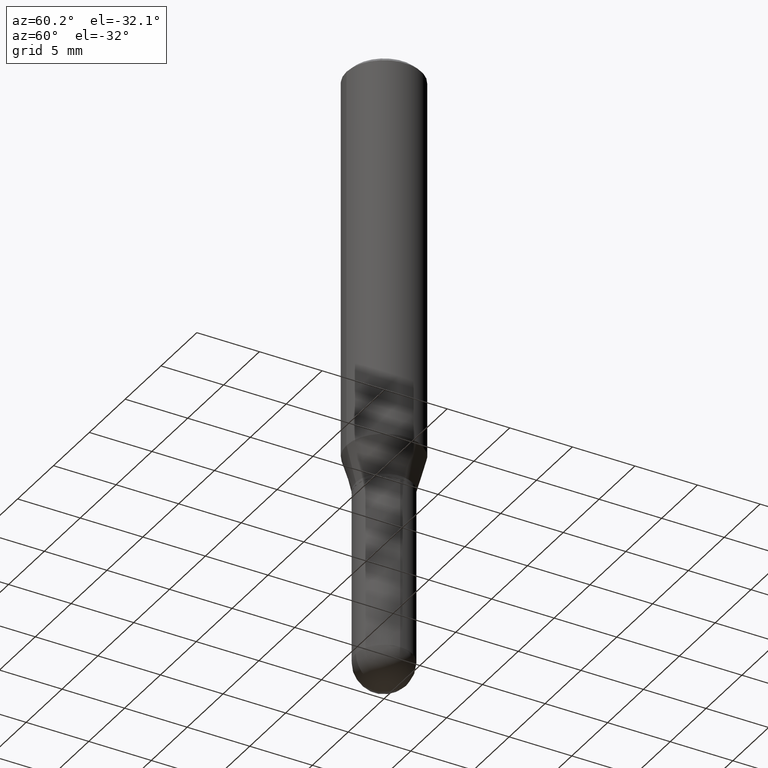
[diagram: clean part render]
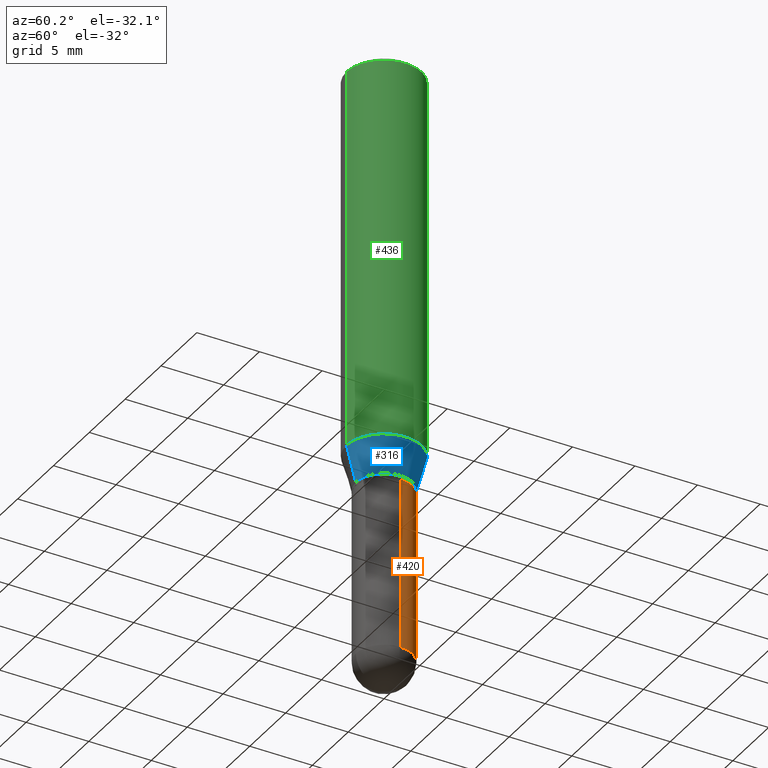
[diagram: same view with three faces highlighted in distinct colors, each labeled with its STEP entity id]
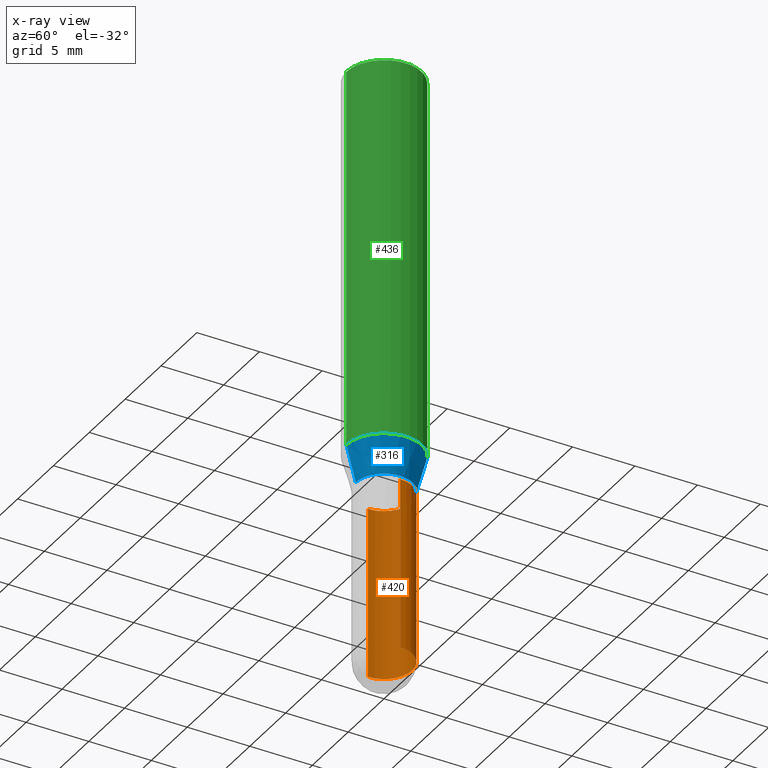
[diagram: x-ray of the same camera — body ghosted, the three highlighted faces saturated]
A machine part, auxiliary view with three faces highlighted in distinct colors.
The next image is the same camera in x-ray (body ghosted, the three faces saturated) — at least one of them is partly hidden behind the body in this view.
Their STEP definitions:

[orange] entity #420 — the highlighted cylindrical surface (edge-blend (fillet) strip) has radius 2.2504 mm, axis along (-0, 0, 1).
#15 = DIRECTION ( 'NONE',  ( 1.000000000000000000, -6.982962677686270655E-15, 0.000000000000000000 ) ) ;
#32 = EDGE_CURVE ( 'NONE', #175, #335, #356, .T. ) ;
#36 = CARTESIAN_POINT ( 'NONE',  ( 6.186904932430488054E-16, 0.08859999999999342013, -1.879900000000000126 ) ) ;
#81 = CARTESIAN_POINT ( 'NONE',  ( 0.08859999999999998432, -6.186904932430030515E-16, 4.320292623355198064E-30 ) ) ;
#82 = CIRCLE ( 'NONE', #200, 0.08859999999999999820 ) ;
#91 = CARTESIAN_POINT ( 'NONE',  ( 4.597236808747438107E-29, -6.563635768891228653E-15, -1.879899999999999904 ) ) ;
#92 = ORIENTED_EDGE ( 'NONE', *, *, #390, .T. ) ;
#97 = CARTESIAN_POINT ( 'NONE',  ( 0.08859999999999999820, -5.292387413418437689E-15, -1.338600000000000012 ) ) ;
#131 = VECTOR ( 'NONE', #389, 39.37007874015748143 ) ;
#135 = VERTEX_POINT ( 'NONE', #36 ) ;
#142 = CARTESIAN_POINT ( 'NONE',  ( 3.273504543959423913E-29, -4.673696920175434737E-15, -1.338600000000000012 ) ) ;
#146 = DIRECTION ( 'NONE',  ( 1.000000000000000000, -6.982962677686265922E-15, 4.876176775795935232E-29 ) ) ;
#173 = VERTEX_POINT ( 'NONE', #401 ) ;
#175 = VERTEX_POINT ( 'NONE', #405 ) ;
#190 = LINE ( 'NONE', #230, #131 ) ;
#200 = AXIS2_PLACEMENT_3D ( 'NONE', #142, #261, #422 ) ;
#213 = DIRECTION ( 'NONE',  ( 1.000000000000000000, -6.982962677686270655E-15, 0.000000000000000000 ) ) ;
#223 = CYLINDRICAL_SURFACE ( 'NONE', #435, 0.08859999999999998432 ) ;
#227 = DIRECTION ( 'NONE',  ( -2.445468806185136597E-29, 3.491481338843145583E-15, 1.000000000000000000 ) ) ;
#230 = CARTESIAN_POINT ( 'NONE',  ( -0.08859999999999998432, 6.295408638834486533E-16, -4.358176489965845566E-30 ) ) ;
#246 = AXIS2_PLACEMENT_3D ( 'NONE', #251, #499, #213 ) ;
#248 = EDGE_CURVE ( 'NONE', #175, #135, #287, .T. ) ;
#251 = CARTESIAN_POINT ( 'NONE',  ( 4.597236808747438107E-29, -6.563635768891228653E-15, -1.879899999999999904 ) ) ;
#254 = EDGE_LOOP ( 'NONE', ( #332, #92, #285, #495, #307 ) ) ;
#261 = DIRECTION ( 'NONE',  ( -2.445468806185136597E-29, 3.491481338843145583E-15, 1.000000000000000000 ) ) ;
#280 = VECTOR ( 'NONE', #311, 39.37007874015748143 ) ;
#285 = ORIENTED_EDGE ( 'NONE', *, *, #447, .F. ) ;
#287 = CIRCLE ( 'NONE', #416, 0.08859999999999998432 ) ;
#295 = CARTESIAN_POINT ( 'NONE',  ( -0.08859999999999998432, -4.989125480649882450E-15, -1.879899999999999904 ) ) ;
#303 = VERTEX_POINT ( 'NONE', #295 ) ;
#307 = ORIENTED_EDGE ( 'NONE', *, *, #248, .T. ) ;
#311 = DIRECTION ( 'NONE',  ( -2.445468806185136877E-29, 3.491481338843145188E-15, 1.000000000000000000 ) ) ;
#332 = ORIENTED_EDGE ( 'NONE', *, *, #488, .T. ) ;
#335 = VERTEX_POINT ( 'NONE', #97 ) ;
#348 = FACE_OUTER_BOUND ( 'NONE', #254, .T. ) ;
#356 = LINE ( 'NONE', #81, #280 ) ;
#370 = CIRCLE ( 'NONE', #246, 0.08859999999999998432 ) ;
#389 = DIRECTION ( 'NONE',  ( -2.445468806185136877E-29, 3.491481338843145188E-15, 1.000000000000000000 ) ) ;
#390 = EDGE_CURVE ( 'NONE', #303, #173, #190, .T. ) ;
#401 = CARTESIAN_POINT ( 'NONE',  ( -0.08859999999999999820, -4.989125480649882450E-15, -1.338600000000000012 ) ) ;
#405 = CARTESIAN_POINT ( 'NONE',  ( 0.08859999999999998432, -6.237356837776335042E-15, -1.879899999999999904 ) ) ;
#416 = AXIS2_PLACEMENT_3D ( 'NONE', #91, #449, #15 ) ;
#420 = ADVANCED_FACE ( 'NONE', ( #348 ), #223, .T. ) ;
#422 = DIRECTION ( 'NONE',  ( 1.000000000000000000, -6.982962677686269077E-15, 0.000000000000000000 ) ) ;
#435 = AXIS2_PLACEMENT_3D ( 'NONE', #509, #227, #146 ) ;
#447 = EDGE_CURVE ( 'NONE', #335, #173, #82, .T. ) ;
#449 = DIRECTION ( 'NONE',  ( -2.445468806185136597E-29, 3.491481338843145583E-15, 1.000000000000000000 ) ) ;
#488 = EDGE_CURVE ( 'NONE', #135, #303, #370, .T. ) ;
#495 = ORIENTED_EDGE ( 'NONE', *, *, #32, .F. ) ;
#499 = DIRECTION ( 'NONE',  ( -2.445468806185136597E-29, 3.491481338843145583E-15, 1.000000000000000000 ) ) ;
#509 = CARTESIAN_POINT ( 'NONE',  ( 0.000000000000000000, 0.000000000000000000, 0.000000000000000000 ) ) ;

[blue] entity #316 — the highlighted conical surface has half-angle 15 deg.
#3 = CIRCLE ( 'NONE', #434, 0.08859999999999991493 ) ;
#12 = CARTESIAN_POINT ( 'NONE',  ( 2.979624522571035712E-29, -4.254658140543858788E-15, -1.218504501176718158 ) ) ;
#13 = DIRECTION ( 'NONE',  ( -2.445312692479667883E-29, 3.491704902554816982E-15, 1.000000000000000000 ) ) ;
#17 = VECTOR ( 'NONE', #215, 39.37007874015747433 ) ;
#44 = DIRECTION ( 'NONE',  ( -6.982962677686264344E-15, -1.000000000000000000, 3.083349879982241481E-15 ) ) ;
#66 = VERTEX_POINT ( 'NONE', #432 ) ;
#94 = ORIENTED_EDGE ( 'NONE', *, *, #114, .T. ) ;
#95 = CARTESIAN_POINT ( 'NONE',  ( -8.246878922347182859E-16, -0.1181000000000042710, -1.218504501176717714 ) ) ;
#98 = VERTEX_POINT ( 'NONE', #234 ) ;
#114 = EDGE_CURVE ( 'NONE', #98, #66, #3, .T. ) ;
#137 = EDGE_CURVE ( 'NONE', #66, #452, #193, .T. ) ;
#167 = ORIENTED_EDGE ( 'NONE', *, *, #137, .T. ) ;
#171 = CARTESIAN_POINT ( 'NONE',  ( -6.186904932429700179E-16, -0.08860000000000455012, -1.328599999999999781 ) ) ;
#172 = CARTESIAN_POINT ( 'NONE',  ( 3.248842443228486773E-29, -4.639079133534330158E-15, -1.328600000000000225 ) ) ;
#176 = EDGE_CURVE ( 'NONE', #98, #487, #408, .T. ) ;
#193 = LINE ( 'NONE', #362, #17 ) ;
#206 = DIRECTION ( 'NONE',  ( -2.445312692479667883E-29, 3.491704902554816982E-15, 1.000000000000000000 ) ) ;
#215 = DIRECTION ( 'NONE',  ( 1.839019923739599526E-15, 0.2588190451025248473, 0.9659258262890673130 ) ) ;
#221 = EDGE_CURVE ( 'NONE', #487, #452, #482, .T. ) ;
#229 = EDGE_LOOP ( 'NONE', ( #94, #167, #293, #371 ) ) ;
#234 = CARTESIAN_POINT ( 'NONE',  ( -6.186904932429700179E-16, -0.08860000000000455012, -1.328599999999999781 ) ) ;
#240 = CARTESIAN_POINT ( 'NONE',  ( 3.248842443228486773E-29, -4.639079133534330158E-15, -1.328600000000000225 ) ) ;
#257 = AXIS2_PLACEMENT_3D ( 'NONE', #12, #206, #288 ) ;
#263 = CARTESIAN_POINT ( 'NONE',  ( 8.391509709327078780E-16, 0.1180999999999957362, -1.218504501176718602 ) ) ;
#283 = FACE_OUTER_BOUND ( 'NONE', #229, .T. ) ;
#288 = DIRECTION ( 'NONE',  ( -6.982962677686265922E-15, -1.000000000000000000, 3.469747663417777397E-15 ) ) ;
#293 = ORIENTED_EDGE ( 'NONE', *, *, #221, .F. ) ;
#298 = VECTOR ( 'NONE', #334, 39.37007874015749564 ) ;
#316 = ADVANCED_FACE ( 'NONE', ( #283 ), #340, .T. ) ;
#334 = DIRECTION ( 'NONE',  ( -1.807323732225328562E-15, -0.2588190451025179639, 0.9659258262890689783 ) ) ;
#340 = CONICAL_SURFACE ( 'NONE', #359, 0.08859999999999991493, 0.2617993877991501295 ) ;
#358 = DIRECTION ( 'NONE',  ( -6.982962677686264344E-15, -1.000000000000000000, 3.083349879982241481E-15 ) ) ;
#359 = AXIS2_PLACEMENT_3D ( 'NONE', #172, #13, #358 ) ;
#362 = CARTESIAN_POINT ( 'NONE',  ( 6.295408638834805036E-16, 0.08859999999999526588, -1.328600000000000447 ) ) ;
#371 = ORIENTED_EDGE ( 'NONE', *, *, #176, .F. ) ;
#398 = DIRECTION ( 'NONE',  ( -2.445312692479667883E-29, 3.491704902554816982E-15, 1.000000000000000000 ) ) ;
#408 = LINE ( 'NONE', #171, #298 ) ;
#432 = CARTESIAN_POINT ( 'NONE',  ( 7.343459174080941908E-16, 0.08859999999999526588, -1.328600000000000447 ) ) ;
#434 = AXIS2_PLACEMENT_3D ( 'NONE', #240, #398, #44 ) ;
#452 = VERTEX_POINT ( 'NONE', #263 ) ;
#482 = CIRCLE ( 'NONE', #257, 0.1180999999999999966 ) ;
#487 = VERTEX_POINT ( 'NONE', #95 ) ;

[green] entity #436 — the highlighted cylindrical surface (partial cylindrical patch) has radius 2.9997 mm, axis along (-0, 0, 1).
#8 = CARTESIAN_POINT ( 'NONE',  ( 8.391509709327082724E-16, 0.1180999999999999411, -0.01500000000000055456 ) ) ;
#12 = CARTESIAN_POINT ( 'NONE',  ( 2.979624522571035712E-29, -4.254658140543858788E-15, -1.218504501176718158 ) ) ;
#77 = DIRECTION ( 'NONE',  ( -2.445312692479667883E-29, 3.491704902554816982E-15, 1.000000000000000000 ) ) ;
#95 = CARTESIAN_POINT ( 'NONE',  ( -8.246878922347182859E-16, -0.1181000000000042710, -1.218504501176717714 ) ) ;
#104 = EDGE_CURVE ( 'NONE', #487, #439, #473, .T. ) ;
#105 = CARTESIAN_POINT ( 'NONE',  ( 8.391509709326781971E-16, 0.1180999999999999966, -4.123703489917239120E-16 ) ) ;
#109 = DIRECTION ( 'NONE',  ( -2.445312692479667883E-29, 3.491704902554816982E-15, 1.000000000000000000 ) ) ;
#121 = ORIENTED_EDGE ( 'NONE', *, *, #407, .F. ) ;
#124 = VERTEX_POINT ( 'NONE', #8 ) ;
#154 = VECTOR ( 'NONE', #77, 39.37007874015748143 ) ;
#187 = LINE ( 'NONE', #105, #199 ) ;
#199 = VECTOR ( 'NONE', #109, 39.37007874015748143 ) ;
#206 = DIRECTION ( 'NONE',  ( -2.445312692479667883E-29, 3.491704902554816982E-15, 1.000000000000000000 ) ) ;
#221 = EDGE_CURVE ( 'NONE', #487, #452, #482, .T. ) ;
#247 = ORIENTED_EDGE ( 'NONE', *, *, #104, .F. ) ;
#257 = AXIS2_PLACEMENT_3D ( 'NONE', #12, #206, #288 ) ;
#263 = CARTESIAN_POINT ( 'NONE',  ( 8.391509709327078780E-16, 0.1180999999999957362, -1.218504501176718602 ) ) ;
#264 = CARTESIAN_POINT ( 'NONE',  ( 3.667969038719537049E-31, -5.237557353832276132E-17, -0.01500000000000014343 ) ) ;
#266 = ORIENTED_EDGE ( 'NONE', *, *, #221, .T. ) ;
#267 = AXIS2_PLACEMENT_3D ( 'NONE', #264, #426, #424 ) ;
#288 = DIRECTION ( 'NONE',  ( -6.982962677686265922E-15, -1.000000000000000000, 3.469747663417777397E-15 ) ) ;
#301 = CYLINDRICAL_SURFACE ( 'NONE', #323, 0.1180999999999999966 ) ;
#323 = AXIS2_PLACEMENT_3D ( 'NONE', #505, #461, #337 ) ;
#337 = DIRECTION ( 'NONE',  ( -6.982962677686265922E-15, -1.000000000000000000, 3.491704902554817376E-15 ) ) ;
#344 = FACE_OUTER_BOUND ( 'NONE', #376, .T. ) ;
#351 = CARTESIAN_POINT ( 'NONE',  ( -8.246878922347479668E-16, -0.1180999999999999966, 4.123703489917239120E-16 ) ) ;
#376 = EDGE_LOOP ( 'NONE', ( #266, #406, #121, #247 ) ) ;
#394 = EDGE_CURVE ( 'NONE', #452, #124, #187, .T. ) ;
#406 = ORIENTED_EDGE ( 'NONE', *, *, #394, .T. ) ;
#407 = EDGE_CURVE ( 'NONE', #439, #124, #489, .T. ) ;
#424 = DIRECTION ( 'NONE',  ( -6.982962677686265922E-15, -1.000000000000000000, 3.487819265831411744E-15 ) ) ;
#426 = DIRECTION ( 'NONE',  ( -2.445312692479667883E-29, 3.491704902554816982E-15, 1.000000000000000000 ) ) ;
#436 = ADVANCED_FACE ( 'NONE', ( #344 ), #301, .T. ) ;
#439 = VERTEX_POINT ( 'NONE', #497 ) ;
#452 = VERTEX_POINT ( 'NONE', #263 ) ;
#461 = DIRECTION ( 'NONE',  ( -2.445312692479667883E-29, 3.491704902554816982E-15, 1.000000000000000000 ) ) ;
#473 = LINE ( 'NONE', #351, #154 ) ;
#482 = CIRCLE ( 'NONE', #257, 0.1180999999999999966 ) ;
#487 = VERTEX_POINT ( 'NONE', #95 ) ;
#489 = CIRCLE ( 'NONE', #267, 0.1180999999999999966 ) ;
#497 = CARTESIAN_POINT ( 'NONE',  ( -8.246878922347475723E-16, -0.1181000000000000522, -0.01499999999999973056 ) ) ;
#505 = CARTESIAN_POINT ( 'NONE',  ( 0.000000000000000000, 0.000000000000000000, 0.000000000000000000 ) ) ;